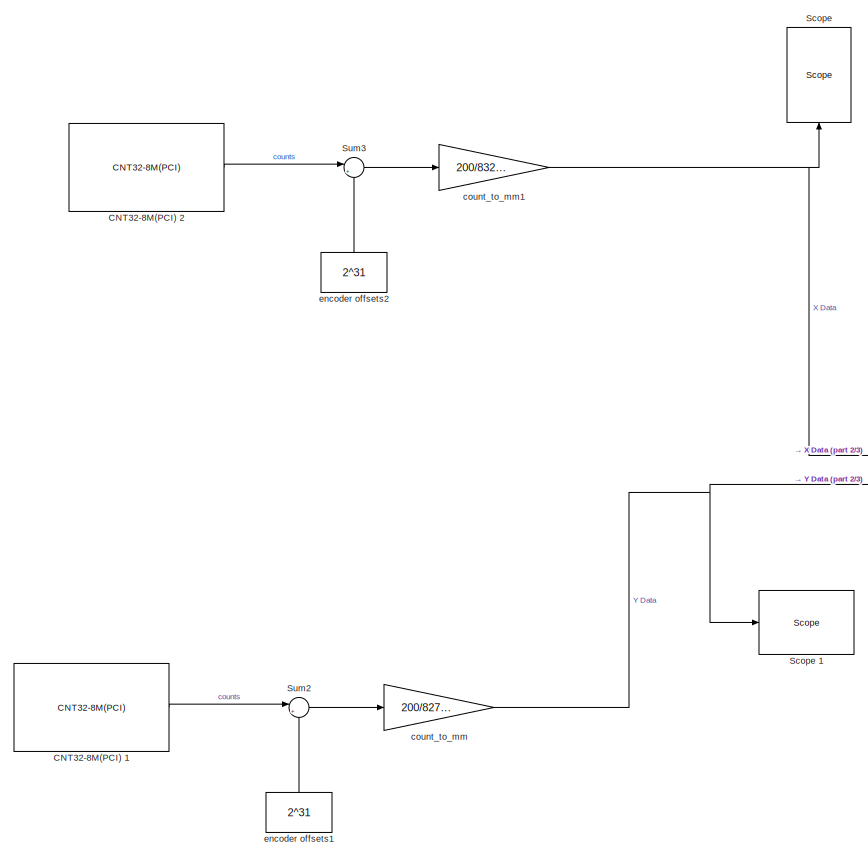
[diagram: root canvas - part 1/3, left side, full height]
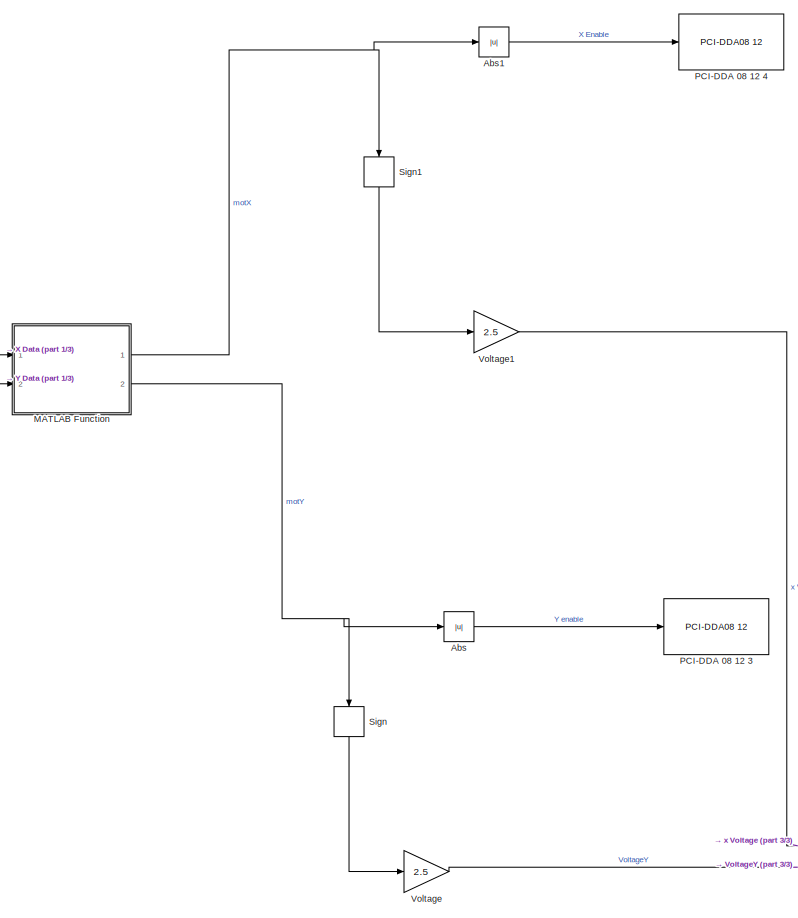
[diagram: root canvas - part 2/3, center side, full height]
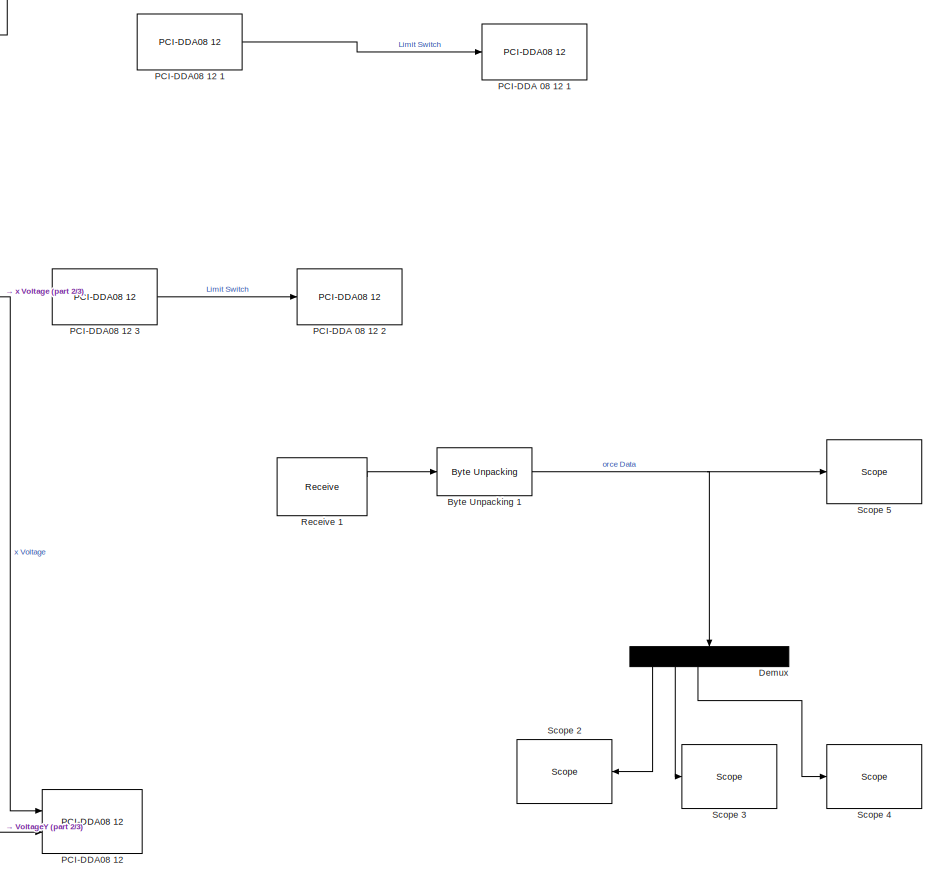
[diagram: root canvas - part 3/3, right side, full height]
MODEL slx_87900f4240a1
KIND model
CONFIG AbsTol = auto
CONFIG FixedStep = auto
CONFIG MaxStep = auto
CONFIG MinStep = auto
CONFIG RelTol = 1e-3
CONFIG SampleTimeConstraint = Unconstrained
CONFIG Solver = ode4
CONFIG SolverMode = Auto
CONFIG SolverName = ode4
CONFIG StartTime = 0.0
CONFIG StopTime = inf
BLOCK [Abs] Abs
  SaturateOnIntegerOverflow = off
BLOCK [Abs] Abs1
  SaturateOnIntegerOverflow = off
BLOCK [Reference] Byte Unpacking 1  REF=xpcutilitieslib/Byte Unpacking 
  Ports = [1, 1]
  SourceBlock = xpcutilitieslib/Byte Unpacking
  SourceType = xpcbytepacking
BLOCK [Reference] CNT32-8M(PCI) 1  REF=xpcconteclib/Incremental
Encoder/CNT32-8M(PCI) 
  Ports = [0, 1]
  SourceBlock = xpcconteclib/Incremental\nEncoder/CNT32-8M(PCI)
  SourceType = encconteccnt328mpci
BLOCK [Reference] CNT32-8M(PCI) 2  REF=xpcconteclib/Incremental
Encoder/CNT32-8M(PCI) 
  Ports = [0, 1]
  SourceBlock = xpcconteclib/Incremental\nEncoder/CNT32-8M(PCI)
  SourceType = encconteccnt328mpci
BLOCK [Demux] Demux
  DisplayOption = bar
  Outputs = 6
  Ports = [1, 6]
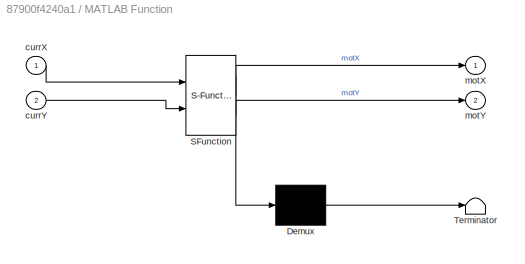
BLOCK [SubSystem] MATLAB Function
  ErrorFcn = Stateflow.Translate.translate
  PermitHierarchicalResolution = ExplicitOnly
  Ports = [2, 2]
  RequestExecContextInheritance = off
  SFBlockType = MATLAB Function
  TreatAsAtomicUnit = on
  Variant = off
BLOCK [Demux] MATLAB Function/ Demux 
  Outputs = 1
  Ports = [1, 1]
BLOCK [S-Function] MATLAB Function/ SFunction 
  EnableBusSupport = on
  FunctionName = sf_sfun
  PortCounts = [2 3]
  Ports = [2, 3]
  SFunctionDeploymentMode = off
  Tag = Stateflow S-Function backup_test1 2
BLOCK [Terminator] MATLAB Function/ Terminator 
BLOCK [Inport] MATLAB Function/currX
  IconDisplay = Port number
BLOCK [Inport] MATLAB Function/currY
  IconDisplay = Port number
  Port = 2
BLOCK [Outport] MATLAB Function/motX
  IconDisplay = Port number
BLOCK [Outport] MATLAB Function/motY
  IconDisplay = Port number
  Port = 2
BLOCK [Reference] PCI-DDA 08 12 1  REF=xpcmeasurementcomputinglib/Digital
Output/PCI-DDA08 12 
  Commented = on
  Ports = [1]
  SourceBlock = xpcmeasurementcomputinglib/Digital\nOutput/PCI-DDA08 12
  SourceType = docbpcidda0812
BLOCK [Reference] PCI-DDA 08 12 2  REF=xpcmeasurementcomputinglib/Digital
Output/PCI-DDA08 12 
  Commented = on
  Ports = [1]
  SourceBlock = xpcmeasurementcomputinglib/Digital\nOutput/PCI-DDA08 12
  SourceType = docbpcidda0812
BLOCK [Reference] PCI-DDA 08 12 3  REF=xpcmeasurementcomputinglib/Digital
Output/PCI-DDA08 12 
  Ports = [1]
  SourceBlock = xpcmeasurementcomputinglib/Digital\nOutput/PCI-DDA08 12
  SourceType = docbpcidda0812
BLOCK [Reference] PCI-DDA 08 12 4  REF=xpcmeasurementcomputinglib/Digital
Output/PCI-DDA08 12 
  Ports = [1]
  SourceBlock = xpcmeasurementcomputinglib/Digital\nOutput/PCI-DDA08 12
  SourceType = docbpcidda0812
BLOCK [Reference] PCI-DDA08 12   REF=xpcmeasurementcomputinglib/D//A/PCI-DDA08 12 
  Ports = [2]
  SourceBlock = xpcmeasurementcomputinglib/D//A/PCI-DDA08 12
  SourceType = dacbpcidda0812
BLOCK [Reference] PCI-DDA08 12 1  REF=xpcmeasurementcomputinglib/Digital
Input/PCI-DDA08 12 
  Ports = [0, 1]
  SourceBlock = xpcmeasurementcomputinglib/Digital\nInput/PCI-DDA08 12
  SourceType = dicbpcidda0812
BLOCK [Reference] PCI-DDA08 12 3  REF=xpcmeasurementcomputinglib/Digital
Input/PCI-DDA08 12 
  Commented = on
  Ports = [0, 1]
  SourceBlock = xpcmeasurementcomputinglib/Digital\nInput/PCI-DDA08 12
  SourceType = dicbpcidda0812
BLOCK [Reference] Receive 1  REF=xpcrtudplib/Legacy UDP/Receive 
  Ports = [0, 2]
  SourceBlock = xpcrtudplib/Legacy UDP/Receive
  SourceType = xpcudpbytereceive
BLOCK [Reference] Scope   REF=slrtlib/Displays and
Logging/Scope 
  Ports = [1]
  SourceBlock = slrtlib/Displays and\nLogging/Scope
  SourceType = xpcscopeblock
BLOCK [Reference] Scope 1  REF=slrtlib/Displays and
Logging/Scope 
  Ports = [1]
  SourceBlock = slrtlib/Displays and\nLogging/Scope
  SourceType = xpcscopeblock
BLOCK [Reference] Scope 2  REF=slrtlib/Displays and
Logging/Scope 
  Ports = [1]
  SourceBlock = slrtlib/Displays and\nLogging/Scope
  SourceType = xpcscopeblock
BLOCK [Reference] Scope 3  REF=slrtlib/Displays and
Logging/Scope 
  Ports = [1]
  SourceBlock = slrtlib/Displays and\nLogging/Scope
  SourceType = xpcscopeblock
BLOCK [Reference] Scope 4  REF=slrtlib/Displays and
Logging/Scope 
  Ports = [1]
  SourceBlock = slrtlib/Displays and\nLogging/Scope
  SourceType = xpcscopeblock
BLOCK [Reference] Scope 5  REF=slrtlib/Displays and
Logging/Scope 
  Ports = [1]
  SourceBlock = slrtlib/Displays and\nLogging/Scope
  SourceType = xpcscopeblock
BLOCK [Signum] Sign
BLOCK [Signum] Sign1
BLOCK [Sum] Sum2
  IconShape = round
  InputSameDT = off
  Inputs = |+-
  OutDataTypeStr = Inherit: Inherit via internal rule
  Ports = [2, 1]
  SaturateOnIntegerOverflow = off
BLOCK [Sum] Sum3
  IconShape = round
  InputSameDT = off
  Inputs = |+-
  OutDataTypeStr = Inherit: Inherit via internal rule
  Ports = [2, 1]
  SaturateOnIntegerOverflow = off
BLOCK [Gain] Voltage
  Gain = 2.5
  OutDataTypeStr = Inherit: Inherit via internal rule
  ParamDataTypeStr = Inherit: Inherit via internal rule
  SaturateOnIntegerOverflow = off
BLOCK [Gain] Voltage1
  Gain = 2.5
  OutDataTypeStr = Inherit: Inherit via internal rule
  ParamDataTypeStr = Inherit: Inherit via internal rule
  SaturateOnIntegerOverflow = off
BLOCK [Gain] count_to_mm
  Gain = 200/82720
  OutDataTypeStr = Inherit: Inherit via internal rule
  ParamDataTypeStr = Inherit: Inherit via internal rule
  SaturateOnIntegerOverflow = off
BLOCK [Gain] count_to_mm1
  Gain = 200/83289
  OutDataTypeStr = Inherit: Inherit via internal rule
  ParamDataTypeStr = Inherit: Inherit via internal rule
  SaturateOnIntegerOverflow = off
BLOCK [Constant] encoder offsets1
  Value = 2^31
BLOCK [Constant] encoder offsets2
  Value = 2^31
LINE Abs1:1 -> PCI-DDA 08 12 4:1
LINE Abs:1 -> PCI-DDA 08 12 3:1
NET Byte Unpacking 1:1 -> Demux:1, Scope 5:1
LINE CNT32-8M(PCI) 1:1 -> Sum2:1
LINE CNT32-8M(PCI) 2:1 -> Sum3:1
LINE Demux:1 -> Scope 2:1
LINE Demux:2 -> Scope 3:1
LINE Demux:3 -> Scope 4:1
NET MATLAB Function:1 -> Abs1:1, Sign1:1
NET MATLAB Function:2 -> Abs:1, Sign:1
LINE PCI-DDA08 12 1:1 -> PCI-DDA 08 12 1:1
LINE PCI-DDA08 12 3:1 -> PCI-DDA 08 12 2:1
LINE Receive 1:1 -> Byte Unpacking 1:1
LINE Sign1:1 -> Voltage1:1
LINE Sign:1 -> Voltage:1
LINE Sum2:1 -> count_to_mm:1
LINE Sum3:1 -> count_to_mm1:1
LINE Voltage1:1 -> PCI-DDA08 12 :1
LINE Voltage:1 -> PCI-DDA08 12 :2
NET count_to_mm1:1 -> MATLAB Function:1, Scope :1
NET count_to_mm:1 -> MATLAB Function:2, Scope 1:1
LINE encoder offsets1:1 -> Sum2:2
LINE encoder offsets2:1 -> Sum3:2
note: NET lines group one-source signal fan-out (src -> all destinations, sorted); 1:1 wires keep LINE
CHART MATLAB Function states=1 transitions=1
  STATE_LABEL 'eML_blk_kernel()'
  STATE_LABEL 'SCRIPT:\nfunction [motX,motY] = moveRas(currX,currY)\n%#codegen\n%#codegen\ncurrX = ceil(currX);\ncurrY = ceil(currY);\nnIntervals=2;\nremY = mod(currY,nIntervals);\nquotY = currY/nIntervals;\nmotX = 0;\nmotY = 0;\nmaxX = 87;\nminX = 0;\nmaxY=87;\n\nif(currX>maxX)\n    maxX = currX;\nend\nif(currX<minX)\n    minX = currX;\nend\n\nif((currX>=minX)&&(currX<maxX)&&(remY==0)&&(mod(quotY,2)==0))\n    motX = -1;\nelseif((currX...<+323ch>'
